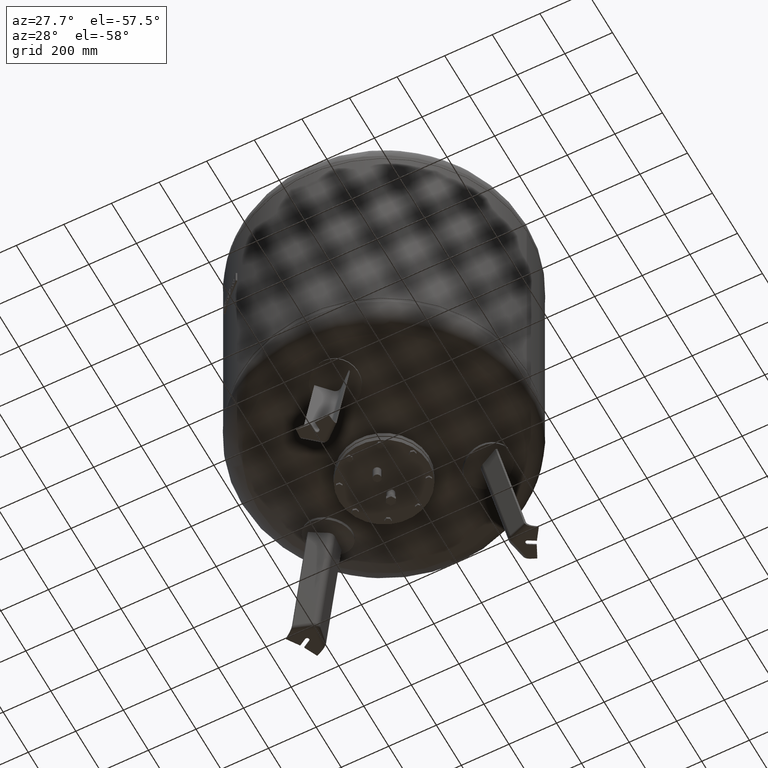
[diagram: clean part render]
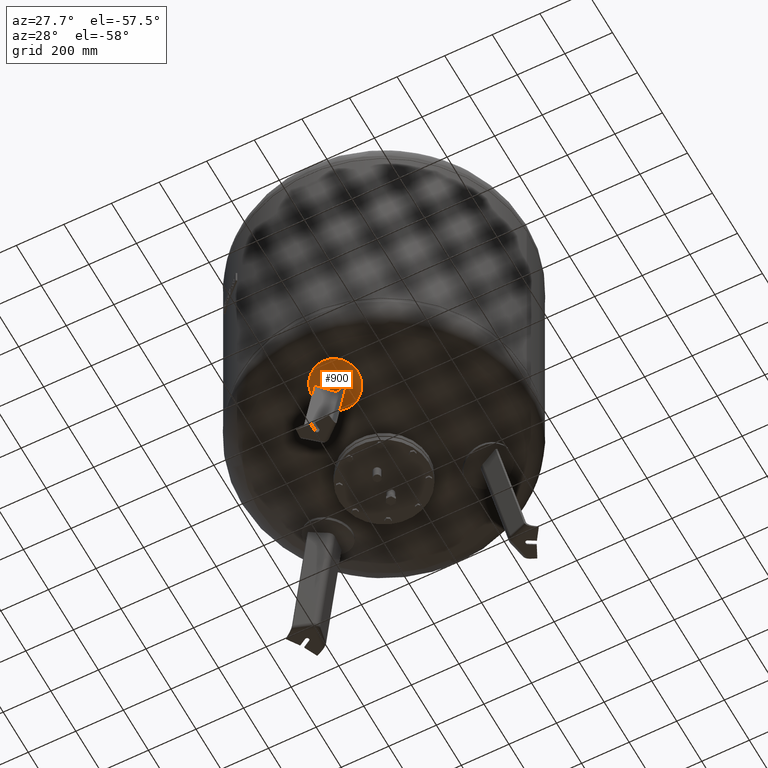
[diagram: same view with one face highlighted and labeled with its STEP entity id]
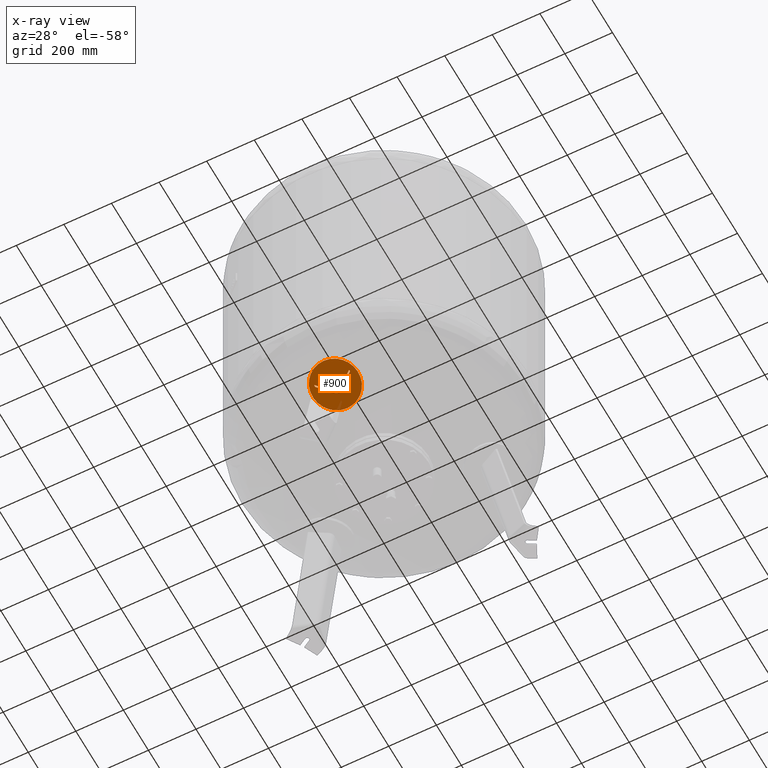
[diagram: x-ray of the same camera — body ghosted, the highlighted face saturated]
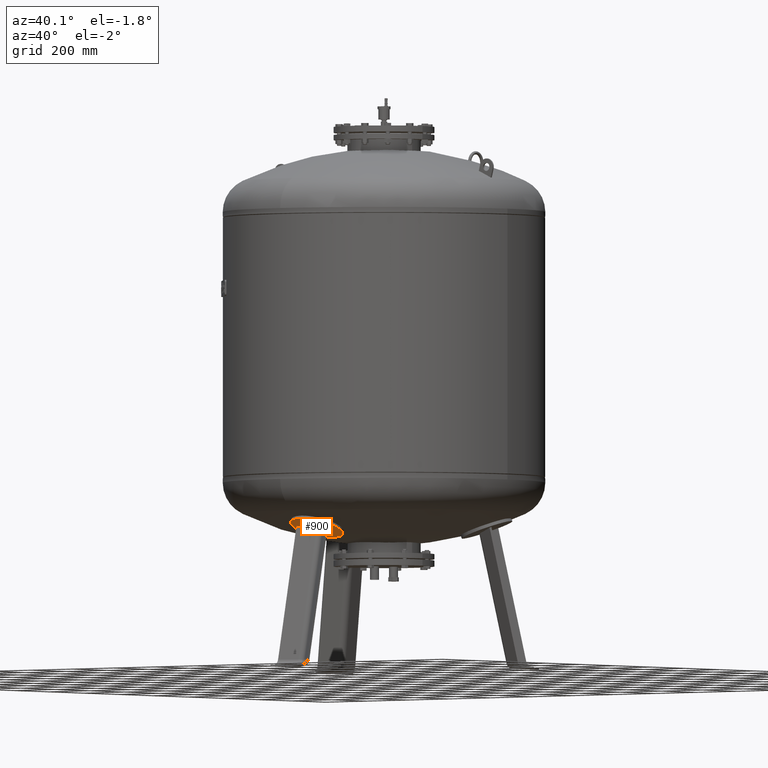
[diagram: same view with one face highlighted and labeled with its STEP entity id]
A machine part, auxiliary view. The second image highlights one B-rep face of the part: STEP entity #900.
The next image is the same camera in x-ray: the body ghosted, the highlighted face saturated — about 1% of this face is hidden behind the body in this view.
A second angle (auxiliary view) of the same face is appended — the face is thin or edge-on in the first view.
In plain terms, the highlighted spherical surface has radius 1006 mm.
Its self-contained STEP definition (entity closure, byte-faithful):
#130=CARTESIAN_POINT('',(0.165533239024324,-294.672642996865650,486.033440505856840));
#131=VERTEX_POINT('',#130);
#140=CARTESIAN_POINT('',(0.165533239024162,-483.776358116728940,551.147071397288300));
#141=VERTEX_POINT('',#140);
#142=CARTESIAN_POINT('',(0.165533239024249,-389.224500556797350,518.590255951572660));
#143=DIRECTION('',(-2.711699E-016,-0.325568154457157,-0.945518575599317));
#144=DIRECTION('',(7.481614E-016,0.945518575599317,-0.325568154457157));
#145=AXIS2_PLACEMENT_3D('',#142,#143,#144);
#146=CIRCLE('',#145,100.0);
#147=EDGE_CURVE('',#141,#131,#146,.T.);
#767=CARTESIAN_POINT('',(0.165533239024520,-63.325086243934038,1465.070880027170500));
#768=DIRECTION('',(1.0,0.0,0.0));
#769=DIRECTION('',(7.481614E-016,0.945518575599317,-0.325568154457157));
#770=AXIS2_PLACEMENT_3D('',#767,#768,#769);
#771=SPHERICAL_SURFACE('',#770,1006.0);
#772=CARTESIAN_POINT('',(0.165533239024249,-389.224500556797350,518.590255951572660));
#773=DIRECTION('',(-2.711699E-016,-0.325568154457157,-0.945518575599317));
#774=DIRECTION('',(7.481614E-016,0.945518575599317,-0.325568154457157));
#775=AXIS2_PLACEMENT_3D('',#772,#773,#774);
#776=CIRCLE('',#775,100.0);
#777=EDGE_CURVE('',#131,#141,#776,.T.);
#778=ORIENTED_EDGE('',*,*,#777,.T.);
#779=ORIENTED_EDGE('',*,*,#147,.T.);
#780=EDGE_LOOP('',(#778,#779));
#781=FACE_OUTER_BOUND('',#780,.T.);
#782=CARTESIAN_POINT('',(16.136450826554654,-366.399566169852280,505.942739782580020));
#783=VERTEX_POINT('',#782);
#784=CARTESIAN_POINT('',(73.500000000000114,-412.056023191574810,524.302688812935000));
#785=VERTEX_POINT('',#784);
#786=CARTESIAN_POINT('',(-41.020088505273414,-110.996632672373320,1475.203780025492300));
#787=DIRECTION('',(-0.645458033062182,-0.747104967402682,0.158802063077709));
#788=DIRECTION('',(-5.092368E-017,-0.207911690817760,-0.978147600733805));
#789=AXIS2_PLACEMENT_3D('',#786,#787,#788);
#790=CIRCLE('',#789,1003.974348556914600);
#791=EDGE_CURVE('',#783,#785,#790,.T.);
#792=ORIENTED_EDGE('',*,*,#791,.F.);
#793=CARTESIAN_POINT('',(-16.136450826554444,-366.398456764061390,505.947959126467590));
#794=VERTEX_POINT('',#793);
#795=CARTESIAN_POINT('',(-16.136450826554444,-366.398456764061390,505.947959126467590));
#796=CARTESIAN_POINT('',(-15.737400566579936,-366.076748518013970,505.839519935654040));
#797=CARTESIAN_POINT('',(-15.327147909001727,-365.766480344501820,505.734934896781850));
#798=CARTESIAN_POINT('',(-14.046721065585743,-364.859207342083210,505.429103824092690));
#799=CARTESIAN_POINT('',(-13.143904252568687,-364.301561156435750,505.241116411709530));
#800=CARTESIAN_POINT('',(-11.271425572263219,-363.302030248417340,504.904132145277800));
#801=CARTESIAN_POINT('',(-10.300484546888351,-362.859462575826110,504.754905007621570));
#802=CARTESIAN_POINT('',(-8.309953011693755,-362.097968578637620,504.498091049258280));
#803=CARTESIAN_POINT('',(-7.290360884908889,-361.779046057881940,504.390505482463710));
#804=CARTESIAN_POINT('',(-5.225144980184176,-361.269712235438310,504.218613051497190));
#805=CARTESIAN_POINT('',(-4.179354266446703,-361.079270589673680,504.154295924989920));
#806=CARTESIAN_POINT('',(-2.085342238614453,-360.827043975141580,504.068989992027010));
#807=CARTESIAN_POINT('',(-1.037118907308644,-360.765274041493630,504.048006248182790));
#808=CARTESIAN_POINT('',(1.038678789270924,-360.765345349864620,504.047670768673360));
#809=CARTESIAN_POINT('',(2.088434223304574,-360.827373189681400,504.068378031877960));
#810=CARTESIAN_POINT('',(4.185395383273503,-361.080473335127180,504.153252291123410));
#811=CARTESIAN_POINT('',(5.232603134368776,-361.271530564476900,504.217414209798390));
#812=CARTESIAN_POINT('',(7.300480784593006,-361.782427323971090,504.389117041742050));
#813=CARTESIAN_POINT('',(8.321318171703672,-362.102297385734120,504.496668222473030));
#814=CARTESIAN_POINT('',(10.314115908884709,-362.865984454112660,504.753530564510750));
#815=CARTESIAN_POINT('',(11.286077877784916,-363.309797658262600,504.902840471794430));
#816=CARTESIAN_POINT('',(13.160327133807668,-364.312075777572770,505.240100544597230));
#817=CARTESIAN_POINT('',(14.063897342508563,-364.871226890810190,505.428281643566950));
#818=CARTESIAN_POINT('',(15.338706105894477,-365.776279989160680,505.732921779836370));
#819=CARTESIAN_POINT('',(15.743019211407953,-366.082360497986430,505.835954876961470));
#820=CARTESIAN_POINT('',(16.136450826554654,-366.399566169852280,505.942739782580020));
#821=B_SPLINE_CURVE_WITH_KNOTS('',3,(#795,#796,#797,#798,#799,#800,#801,#802,#803,#804,#805,#806,#807,#808,#809,#810,#811,#812,#813,#814,#815,#816,#817,#818,#819,#820),.UNSPECIFIED.,.F.,.U.,(4,2,2,2,2,2,2,2,2,2,2,2,4),(32.794903054826207,34.316215825106944,37.427572589502290,40.538929353897636,43.650286118292982,46.761642882688328,49.872999647083674,52.989036057429090,56.105072467774505,59.221108878119921,62.337145288465337,65.453181698810752,66.953203267256470),.UNSPECIFIED.);
#822=EDGE_CURVE('',#794,#783,#821,.T.);
#823=ORIENTED_EDGE('',*,*,#822,.F.);
#824=CARTESIAN_POINT('',(-73.499999999999886,-412.050926808483500,524.326665410275270));
#825=VERTEX_POINT('',#824);
#826=CARTESIAN_POINT('',(41.213227367519892,-110.836984172192500,1475.169845689218200));
#827=DIRECTION('',(0.645458033062181,-0.747104967402683,0.158802063077708));
#828=DIRECTION('',(-5.092368E-017,-0.207911690817760,-0.978147600733805));
#829=AXIS2_PLACEMENT_3D('',#826,#827,#828);
#830=CIRCLE('',#829,1003.987906926445600);
#831=EDGE_CURVE('',#825,#794,#830,.T.);
#832=ORIENTED_EDGE('',*,*,#831,.F.);
#833=CARTESIAN_POINT('',(-72.837866169854905,-418.875260683767750,526.832862714638170));
#834=VERTEX_POINT('',#833);
#835=CARTESIAN_POINT('',(-86.157992096503818,-71.094203524131558,1466.722256883460400));
#836=DIRECTION('',(0.995793708775987,0.089621433789838,-0.019049623818306));
#837=DIRECTION('',(-0.019126591083317,4.684664E-018,-0.999817070025078));
#838=AXIS2_PLACEMENT_3D('',#835,#836,#837);
#839=CIRCLE('',#838,1002.258032018108500);
#840=EDGE_CURVE('',#834,#825,#839,.T.);
#841=ORIENTED_EDGE('',*,*,#840,.F.);
#842=CARTESIAN_POINT('',(-16.136450826554402,-373.822192772864470,508.325463444113210));
#843=VERTEX_POINT('',#842);
#844=CARTESIAN_POINT('',(45.036832094930027,-115.262731376360140,1476.110567297756700));
#845=DIRECTION('',(-0.645458033062181,0.747104967402683,-0.158802063077709));
#846=DIRECTION('',(5.092368E-017,0.207911690817760,0.978147600733806));
#847=AXIS2_PLACEMENT_3D('',#844,#845,#846);
#848=CIRCLE('',#847,1003.595123972834800);
#849=EDGE_CURVE('',#843,#834,#848,.T.);
#850=ORIENTED_EDGE('',*,*,#849,.F.);
#851=CARTESIAN_POINT('',(16.136450826554661,-373.823303045940410,508.320240019970470));
#852=VERTEX_POINT('',#851);
#853=CARTESIAN_POINT('',(16.136450826554661,-373.823303045940410,508.320240019970470));
#854=CARTESIAN_POINT('',(15.917425305939714,-373.647014751298570,508.259372289933540));
#855=CARTESIAN_POINT('',(15.695952439713579,-373.474914280727260,508.199952659748990));
#856=CARTESIAN_POINT('',(14.586913015032827,-372.642616384653140,507.912602619461320));
#857=CARTESIAN_POINT('',(13.669779852160106,-372.048163298794630,507.707401644527640));
#858=CARTESIAN_POINT('',(11.848338885347227,-371.018875567778990,507.352151483820360));
#859=CARTESIAN_POINT('',(10.866356499818522,-370.539218165504850,507.186631956602980));
#860=CARTESIAN_POINT('',(8.802187212801522,-369.697989209095510,506.896409636033180));
#861=CARTESIAN_POINT('',(7.719994848307462,-369.336429683015640,506.771710833648460));
#862=CARTESIAN_POINT('',(5.513798001781595,-368.759645484505540,506.572869613931570));
#863=CARTESIAN_POINT('',(4.388913979679063,-368.544193415049110,506.498648705277670));
#864=CARTESIAN_POINT('',(2.160913920860796,-368.263727582201400,506.402164326406820));
#865=CARTESIAN_POINT('',(1.057799081638127,-368.198705319538590,506.379897910233810));
#866=CARTESIAN_POINT('',(-1.056459078413867,-368.198632636583740,506.380239856651490));
#867=CARTESIAN_POINT('',(-2.158193197827700,-368.263414520093530,506.402806025775360));
#868=CARTESIAN_POINT('',(-4.383474516183127,-368.543030120164470,506.499769920901030));
#869=CARTESIAN_POINT('',(-5.507020497440985,-368.757872487493730,506.574170645728710));
#870=CARTESIAN_POINT('',(-7.710696223964674,-369.333093625314520,506.773237798320680));
#871=CARTESIAN_POINT('',(-8.791702362586984,-369.693698597350590,506.897982609829510));
#872=CARTESIAN_POINT('',(-10.853737211046138,-370.532748427299340,507.188169031350010));
#873=CARTESIAN_POINT('',(-11.834771451332275,-371.011181092939520,507.353606595328530));
#874=CARTESIAN_POINT('',(-13.654608922278614,-372.037872143589990,507.708592610853430));
#875=CARTESIAN_POINT('',(-14.571053363268190,-372.630860835443000,507.913606462838800));
#876=CARTESIAN_POINT('',(-15.685135821871459,-373.465433571515350,508.202129029618390));
#877=CARTESIAN_POINT('',(-15.912080570595853,-373.641618095140470,508.263037646980650));
#878=CARTESIAN_POINT('',(-16.136450826554402,-373.822192772864470,508.325463444113210));
#879=B_SPLINE_CURVE_WITH_KNOTS('',3,(#853,#854,#855,#856,#857,#858,#859,#860,#861,#862,#863,#864,#865,#866,#867,#868,#869,#870,#871,#872,#873,#874,#875,#876,#877,#878),.UNSPECIFIED.,.F.,.U.,(4,2,2,2,2,2,2,2,2,2,2,2,4),(34.351574704530236,35.157137084380075,38.350021909641775,41.523419197935439,44.696816486229096,47.870213774522753,51.043611062816417,54.212988341383024,57.382365619949638,60.551742898516245,63.721120177082852,66.909986527717621,67.735047143007677),.UNSPECIFIED.);
#880=EDGE_CURVE('',#852,#843,#879,.T.);
#881=ORIENTED_EDGE('',*,*,#880,.F.);
#882=CARTESIAN_POINT('',(72.837866169855147,-418.880316414739580,526.809077370483350));
#883=VERTEX_POINT('',#882);
#884=CARTESIAN_POINT('',(-44.843693232683513,-115.422379876540900,1476.144501634031000));
#885=DIRECTION('',(0.645458033062182,0.747104967402682,-0.158802063077709));
#886=DIRECTION('',(5.092368E-017,0.207911690817760,0.978147600733805));
#887=AXIS2_PLACEMENT_3D('',#884,#885,#886);
#888=CIRCLE('',#887,1003.580298946269700);
#889=EDGE_CURVE('',#883,#852,#888,.T.);
#890=ORIENTED_EDGE('',*,*,#889,.F.);
#891=CARTESIAN_POINT('',(86.160771363025532,-71.064657675094168,1466.715976719377300));
#892=DIRECTION('',(-0.995793708775987,0.089621433789840,-0.019049623818306));
#893=DIRECTION('',(-0.019126591083317,4.684664E-018,0.999817070025078));
#894=AXIS2_PLACEMENT_3D('',#891,#892,#893);
#895=CIRCLE('',#894,1002.286491833014600);
#896=EDGE_CURVE('',#785,#883,#895,.T.);
#897=ORIENTED_EDGE('',*,*,#896,.F.);
#898=EDGE_LOOP('',(#792,#823,#832,#841,#850,#881,#890,#897));
#899=FACE_BOUND('',#898,.T.);
#900=ADVANCED_FACE('',(#781,#899),#771,.T.);